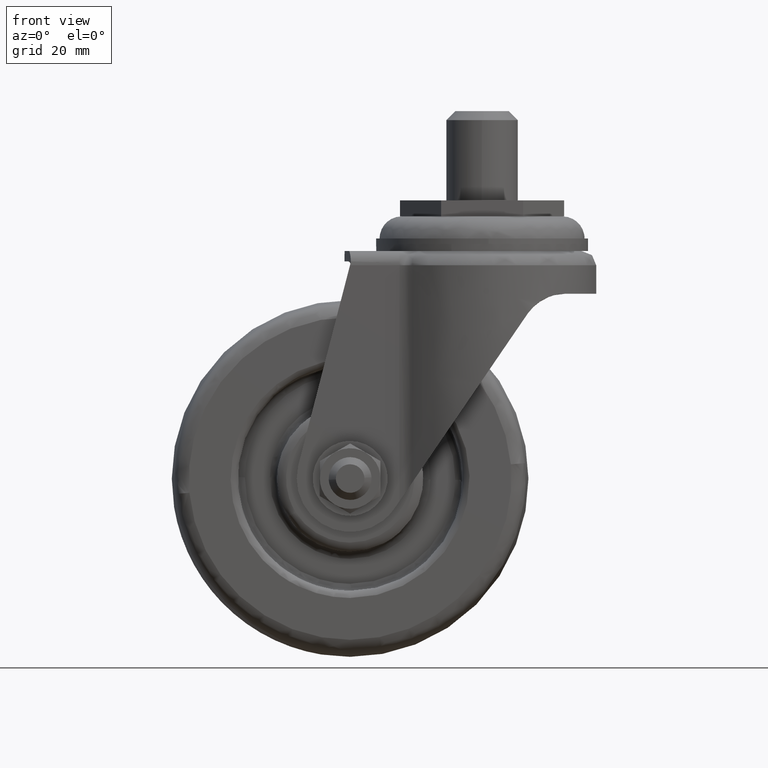
[diagram: clean part render]
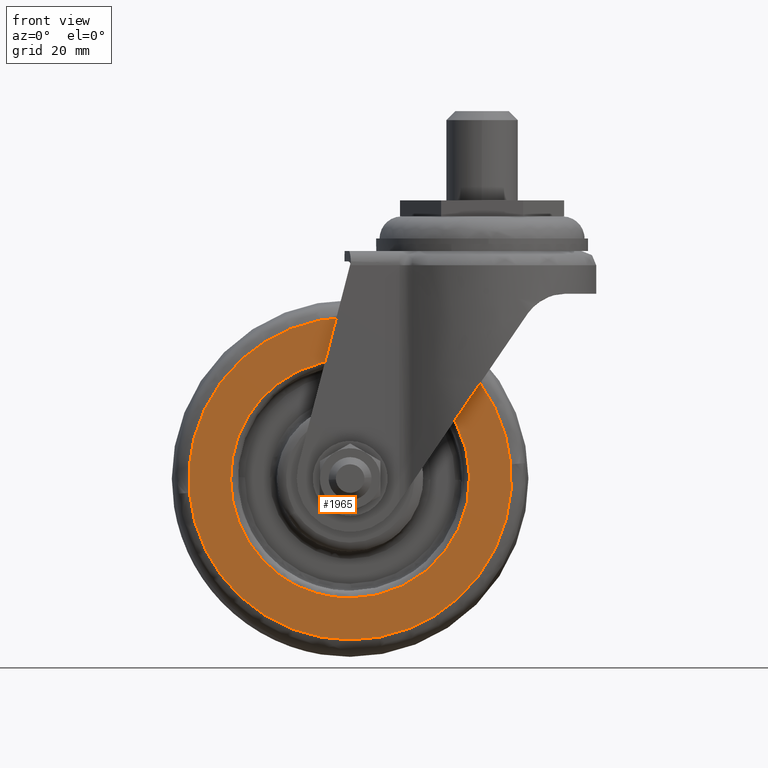
[diagram: same view with one face highlighted and labeled with its STEP entity id]
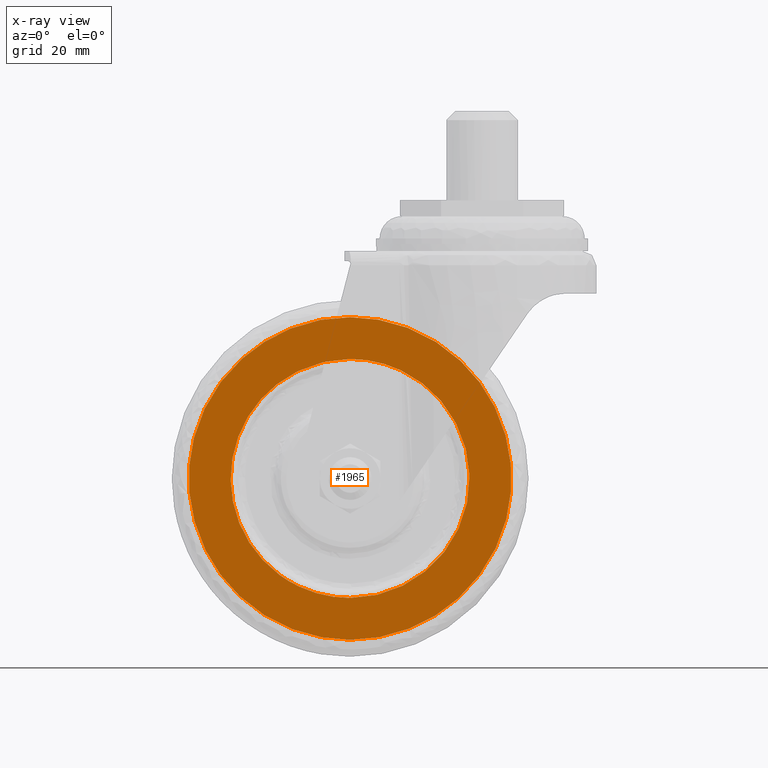
[diagram: x-ray of the same camera — body ghosted, the highlighted face saturated]
A machine part, front view. The second image highlights one B-rep face of the part: STEP entity #1965.
The next image is the same camera in x-ray: the body ghosted, the highlighted face saturated — about 0% of this face is hidden behind the body in this view.
In plain terms, the highlighted face is a freeform B-spline surface patch.
Its self-contained STEP definition (entity closure, byte-faithful):
#1637=CARTESIAN_POINT('',(-22.736393732604771,-19.000000000000249,-43.188293742453027));
#1638=VERTEX_POINT('',#1637);
#1654=CARTESIAN_POINT('',(-37.0,-19.000000000000249,-39.999999999999993));
#1655=VERTEX_POINT('',#1654);
#1656=CARTESIAN_POINT('',(-22.736393732604771,-19.000000000000245,-43.188293742453027));
#1657=CARTESIAN_POINT('',(-29.511862822963135,-19.000000000000249,-40.000000000033168));
#1658=CARTESIAN_POINT('',(-37.0,-19.000000000000249,-39.999999999999993));
#1666=(BOUNDED_CURVE()B_SPLINE_CURVE(2,(#1656,#1657,#1658),.UNSPECIFIED.,.F.,.U.)B_SPLINE_CURVE_WITH_KNOTS((3,3),(0.427668464636493,0.500000000000000),.UNSPECIFIED.)CURVE()GEOMETRIC_REPRESENTATION_ITEM()RATIONAL_B_SPLINE_CURVE((0.879552628112440,0.915258335142653,1.0))REPRESENTATION_ITEM(''));
#1667=EDGE_CURVE('',#1638,#1655,#1666,.T.);
#1669=CARTESIAN_POINT('',(-51.263606267395218,-19.000000000000249,-103.811706257547000));
#1670=VERTEX_POINT('',#1669);
#1671=CARTESIAN_POINT('',(-37.0,-19.000000000000249,-39.999999999999993));
#1672=CARTESIAN_POINT('',(-38.826695513763433,-19.000000000000270,-39.999861310835072));
#1673=CARTESIAN_POINT('',(-41.831826784095313,-19.000000000000188,-40.246441305054709));
#1674=CARTESIAN_POINT('',(-45.808407765979872,-19.000000000000320,-41.120517693506123));
#1675=CARTESIAN_POINT('',(-49.676570658602841,-19.000000000000099,-42.387722103197760));
#1676=CARTESIAN_POINT('',(-53.410490034998439,-19.000000000000629,-44.172571668849542));
#1677=CARTESIAN_POINT('',(-56.957471316862971,-18.999999999999581,-46.512297250543789));
#1678=CARTESIAN_POINT('',(-59.594215146282842,-19.000000000000700,-48.694190341069323));
#1679=CARTESIAN_POINT('',(-62.586873679176357,-19.0,-51.707557157071768));
#1680=CARTESIAN_POINT('',(-65.254054132426006,-19.000000000000181,-55.254965028974830));
#1681=CARTESIAN_POINT('',(-67.539213320368319,-19.000000000000419,-59.522463298809107));
#1682=CARTESIAN_POINT('',(-69.279706244034656,-19.000000000000320,-64.040439268435222));
#1683=CARTESIAN_POINT('',(-70.362878447220936,-19.000000000000291,-69.073554410208473));
#1684=CARTESIAN_POINT('',(-70.625187177600438,-19.000000000000490,-74.798943146686895));
#1685=CARTESIAN_POINT('',(-70.027122510745315,-19.000000000000099,-79.851611448610711));
#1686=CARTESIAN_POINT('',(-68.779036068835197,-19.000000000000270,-84.345980021706893));
#1687=CARTESIAN_POINT('',(-67.254926823815879,-19.000000000000259,-88.058376033036978));
#1688=CARTESIAN_POINT('',(-65.196108882451583,-19.000000000000259,-91.776931230421027));
#1689=CARTESIAN_POINT('',(-62.866525189516373,-19.000000000000409,-94.904324404817515));
#1690=CARTESIAN_POINT('',(-59.839880442035401,-18.999999999999119,-98.129443486946599));
#1691=CARTESIAN_POINT('',(-56.246124548412027,-19.000000000003482,-101.114346539605090));
#1692=CARTESIAN_POINT('',(-52.969811198592673,-18.999999999997708,-103.008968249686500));
#1693=CARTESIAN_POINT('',(-51.263606267395218,-19.000000000000249,-103.811706257547000));
#1694=B_SPLINE_CURVE_WITH_KNOTS('',3,(#1671,#1672,#1673,#1674,#1675,#1676,#1677,#1678,#1679,#1680,#1681,#1682,#1683,#1684,#1685,#1686,#1687,#1688,#1689,#1690,#1691,#1692,#1693),.UNSPECIFIED.,.F.,.U.,(4,1,1,1,1,1,1,1,1,1,1,1,1,1,1,1,1,1,1,1,4),(0.000000036263117,5.480062940256261,9.015553632878891,12.197553136092470,17.677584882903801,21.389928605381101,24.925453840688011,27.930654223718019,34.117824169790673,38.183681561001542,42.426331476318509,48.613563638130877,53.563188910468106,59.573548220345693,63.816176873637630,67.528482753063969,71.594337384053020,76.544078585414539,79.195724493282526,84.852569483287240,90.509389360735426),.UNSPECIFIED.);
#1695=EDGE_CURVE('',#1655,#1670,#1694,.T.);
#1764=CARTESIAN_POINT('',(-37.0,-19.000000000000249,-107.0));
#1765=VERTEX_POINT('',#1764);
#1766=CARTESIAN_POINT('',(-51.263606267395218,-19.000000000000245,-103.811706257546970));
#1767=CARTESIAN_POINT('',(-44.488137177036869,-19.000000000000249,-106.999999999966850));
#1768=CARTESIAN_POINT('',(-37.0,-19.000000000000249,-107.0));
#1776=(BOUNDED_CURVE()B_SPLINE_CURVE(2,(#1766,#1767,#1768),.UNSPECIFIED.,.F.,.U.)B_SPLINE_CURVE_WITH_KNOTS((3,3),(0.927668464636493,1.0),.UNSPECIFIED.)CURVE()GEOMETRIC_REPRESENTATION_ITEM()RATIONAL_B_SPLINE_CURVE((0.879552628112440,0.915258335142653,1.0))REPRESENTATION_ITEM(''));
#1777=EDGE_CURVE('',#1670,#1765,#1776,.T.);
#1779=CARTESIAN_POINT('',(-37.0,-19.000000000000249,-107.0));
#1780=CARTESIAN_POINT('',(-34.878667970090028,-19.000000000000249,-107.000275724076400));
#1781=CARTESIAN_POINT('',(-31.696811225524709,-19.000000000000249,-106.696693811408910));
#1782=CARTESIAN_POINT('',(-27.453923610959681,-19.000000000000341,-105.669736767477600));
#1783=CARTESIAN_POINT('',(-24.224811834844850,-19.000000000000021,-104.535775787683210));
#1784=CARTESIAN_POINT('',(-20.653357287753241,-19.000000000000480,-102.840201288752500));
#1785=CARTESIAN_POINT('',(-17.315285713327299,-19.000000000000270,-100.713437383895600));
#1786=CARTESIAN_POINT('',(-13.496355503171101,-18.999999999999940,-97.553619738941990));
#1787=CARTESIAN_POINT('',(-10.064703749297390,-19.000000000000519,-93.712276336006397));
#1788=CARTESIAN_POINT('',(-6.963264914688304,-19.0,-88.680169242912783));
#1789=CARTESIAN_POINT('',(-5.136655016673609,-19.000000000000380,-84.187045143047683));
#1790=CARTESIAN_POINT('',(-4.002972877705524,-19.000000000000341,-79.726893076196006));
#1791=CARTESIAN_POINT('',(-3.496833921742852,-19.000000000000291,-75.861701881172948));
#1792=CARTESIAN_POINT('',(-3.472007323353588,-19.000000000000171,-71.848736174512723));
#1793=CARTESIAN_POINT('',(-3.884885585093717,-19.000000000000369,-67.916306524834411));
#1794=CARTESIAN_POINT('',(-4.718500271635149,-19.000000000000082,-64.290532592987901));
#1795=CARTESIAN_POINT('',(-5.946596149563646,-18.999999999999780,-60.783296736903900));
#1796=CARTESIAN_POINT('',(-7.720013936318900,-19.000000000000611,-56.986929822869641));
#1797=CARTESIAN_POINT('',(-10.052273672345599,-19.000000000000099,-53.423633059926239));
#1798=CARTESIAN_POINT('',(-12.950068492509800,-19.000000000000391,-50.080251608073979));
#1799=CARTESIAN_POINT('',(-15.508698505433649,-19.000000000000270,-47.716224017075987));
#1800=CARTESIAN_POINT('',(-18.826154958234682,-18.999999999999250,-45.258066403858770));
#1801=CARTESIAN_POINT('',(-21.190143375929100,-19.000000000002380,-43.915780082685188));
#1802=CARTESIAN_POINT('',(-22.736393732604771,-19.000000000000249,-43.188293742453027));
#1803=B_SPLINE_CURVE_WITH_KNOTS('',3,(#1779,#1780,#1781,#1782,#1783,#1784,#1785,#1786,#1787,#1788,#1789,#1790,#1791,#1792,#1793,#1794,#1795,#1796,#1797,#1798,#1799,#1800,#1801,#1802),.UNSPECIFIED.,.F.,.U.,(4,1,1,1,1,1,1,1,1,1,1,1,1,1,1,1,1,1,1,1,1,4),(0.000000036559882,6.363931287779096,9.545897911533515,13.081435519745300,16.616957693008619,21.389928605628139,24.925453840926611,31.466180373473239,36.769482221654549,42.603155230997658,45.961901589086807,50.558025658574749,54.270286440791807,57.982568788336309,62.401965190179148,65.407180123060101,69.119482389709503,74.953092009938871,78.135067948559211,82.377699421809552,85.382896713350462,90.509389360736677),.UNSPECIFIED.);
#1804=EDGE_CURVE('',#1765,#1638,#1803,.T.);
#1888=CARTESIAN_POINT('',(-86.732903502475054,-19.000000000000249,-23.754374116118989));
#1889=CARTESIAN_POINT('',(-86.732903502475054,-19.000000000000249,-123.245628310068200));
#1890=CARTESIAN_POINT('',(12.732902693756211,-19.000000000000249,-23.754374116118999));
#1891=CARTESIAN_POINT('',(12.732902693756211,-19.000000000000249,-123.245628310068200));
#1892=B_SPLINE_SURFACE_WITH_KNOTS('',1,1,((#1888,#1890),(#1889,#1891)),.UNSPECIFIED.,.F.,.F.,.U.,(2,2),(2,2),(0.0,99.491254193949246),(0.0,99.465806196231270),.UNSPECIFIED.);
#1893=CARTESIAN_POINT('',(-37.0,-19.000000000000249,-118.727408000000000));
#1894=VERTEX_POINT('',#1893);
#1895=CARTESIAN_POINT('',(8.052541164142092,-19.000000000000249,-69.526718090209954));
#1896=VERTEX_POINT('',#1895);
#1897=CARTESIAN_POINT('',(-37.0,-19.000000000000249,-118.727408000000000));
#1898=CARTESIAN_POINT('',(8.227408000418068,-19.000000000000252,-118.727407999963110));
#1899=CARTESIAN_POINT('',(8.227408000874647,-19.000000000000249,-73.499999999922863));
#1900=CARTESIAN_POINT('',(8.227408000894741,-19.000000000000249,-71.509511040910425));
#1901=CARTESIAN_POINT('',(8.052541164142093,-19.000000000000245,-69.526718090209954));
#1909=(BOUNDED_CURVE()B_SPLINE_CURVE(2,(#1897,#1898,#1899,#1900,#1901),.UNSPECIFIED.,.F.,.U.)B_SPLINE_CURVE_WITH_KNOTS((3,2,3),(0.0,0.250000000000000,0.265281545144037),.UNSPECIFIED.)CURVE()GEOMETRIC_REPRESENTATION_ITEM()RATIONAL_B_SPLINE_CURVE((1.0,0.707106781186547,1.0,0.982096556217280,0.966381850709755))REPRESENTATION_ITEM(''));
#1910=EDGE_CURVE('',#1894,#1896,#1909,.T.);
#1911=ORIENTED_EDGE('',*,*,#1910,.T.);
#1912=CARTESIAN_POINT('',(-37.0,-19.000000000000249,-28.272592000000000));
#1913=VERTEX_POINT('',#1912);
#1914=CARTESIAN_POINT('',(8.052541164142093,-19.000000000000245,-69.526718090209954));
#1915=CARTESIAN_POINT('',(4.414249767389972,-19.000000000000242,-28.272591999959747));
#1916=CARTESIAN_POINT('',(-37.0,-19.000000000000249,-28.272592000000000));
#1924=(BOUNDED_CURVE()B_SPLINE_CURVE(2,(#1914,#1915,#1916),.UNSPECIFIED.,.F.,.U.)B_SPLINE_CURVE_WITH_KNOTS((3,3),(0.265281545144037,0.500000000000000),.UNSPECIFIED.)CURVE()GEOMETRIC_REPRESENTATION_ITEM()RATIONAL_B_SPLINE_CURVE((0.966381850709755,0.725010224969267,1.0))REPRESENTATION_ITEM(''));
#1925=EDGE_CURVE('',#1896,#1913,#1924,.T.);
#1926=ORIENTED_EDGE('',*,*,#1925,.T.);
#1927=CARTESIAN_POINT('',(-82.052541164142099,-19.000000000000249,-77.473281909790018));
#1928=VERTEX_POINT('',#1927);
#1929=CARTESIAN_POINT('',(-37.0,-19.000000000000249,-28.272592000000000));
#1930=CARTESIAN_POINT('',(-82.227408000418052,-19.000000000000252,-28.272592000036880));
#1931=CARTESIAN_POINT('',(-82.227408000874632,-19.000000000000249,-73.500000000077137));
#1932=CARTESIAN_POINT('',(-82.227408000894741,-19.000000000000245,-75.490488959089575));
#1933=CARTESIAN_POINT('',(-82.052541164142099,-19.000000000000249,-77.473281909790018));
#1941=(BOUNDED_CURVE()B_SPLINE_CURVE(2,(#1929,#1930,#1931,#1932,#1933),.UNSPECIFIED.,.F.,.U.)B_SPLINE_CURVE_WITH_KNOTS((3,2,3),(0.500000000000000,0.750000000000000,0.765281545144036),.UNSPECIFIED.)CURVE()GEOMETRIC_REPRESENTATION_ITEM()RATIONAL_B_SPLINE_CURVE((1.0,0.707106781186547,1.0,0.982096556217280,0.966381850709756))REPRESENTATION_ITEM(''));
#1942=EDGE_CURVE('',#1913,#1928,#1941,.T.);
#1943=ORIENTED_EDGE('',*,*,#1942,.T.);
#1944=CARTESIAN_POINT('',(-82.052541164142099,-19.000000000000249,-77.473281909790018));
#1945=CARTESIAN_POINT('',(-78.414249767389990,-19.000000000000245,-118.727408000040240));
#1946=CARTESIAN_POINT('',(-37.0,-19.000000000000249,-118.727408000000000));
#1954=(BOUNDED_CURVE()B_SPLINE_CURVE(2,(#1944,#1945,#1946),.UNSPECIFIED.,.F.,.U.)B_SPLINE_CURVE_WITH_KNOTS((3,3),(0.765281545144036,1.0),.UNSPECIFIED.)CURVE()GEOMETRIC_REPRESENTATION_ITEM()RATIONAL_B_SPLINE_CURVE((0.966381850709756,0.725010224969267,1.0))REPRESENTATION_ITEM(''));
#1955=EDGE_CURVE('',#1928,#1894,#1954,.T.);
#1956=ORIENTED_EDGE('',*,*,#1955,.T.);
#1957=EDGE_LOOP('',(#1911,#1926,#1943,#1956));
#1958=FACE_OUTER_BOUND('',#1957,.T.);
#1959=ORIENTED_EDGE('',*,*,#1695,.F.);
#1960=ORIENTED_EDGE('',*,*,#1667,.F.);
#1961=ORIENTED_EDGE('',*,*,#1804,.F.);
#1962=ORIENTED_EDGE('',*,*,#1777,.F.);
#1963=EDGE_LOOP('',(#1959,#1960,#1961,#1962));
#1964=FACE_BOUND('',#1963,.T.);
#1965=ADVANCED_FACE('',(#1958,#1964),#1892,.T.);